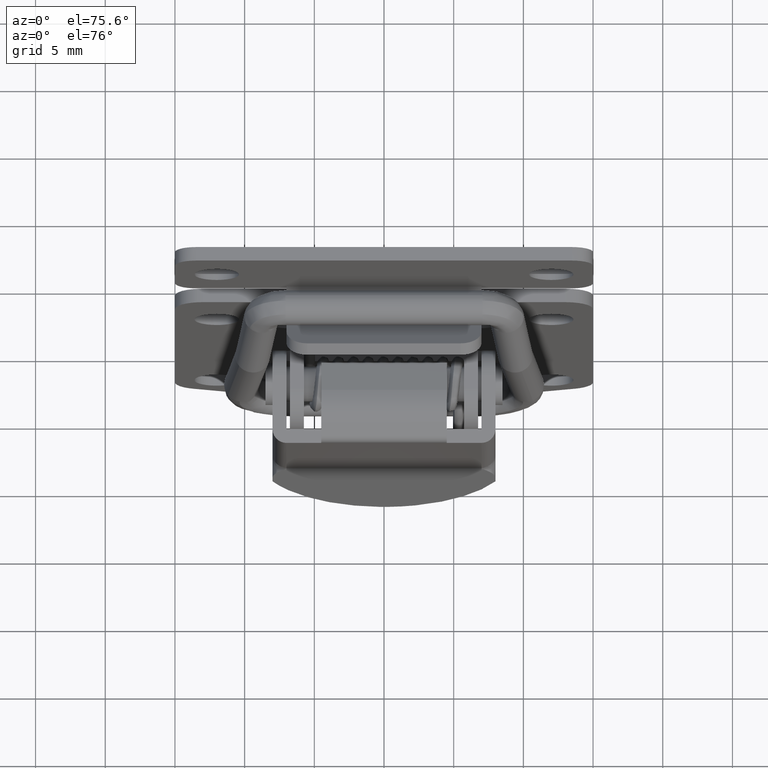
[diagram: clean part render]
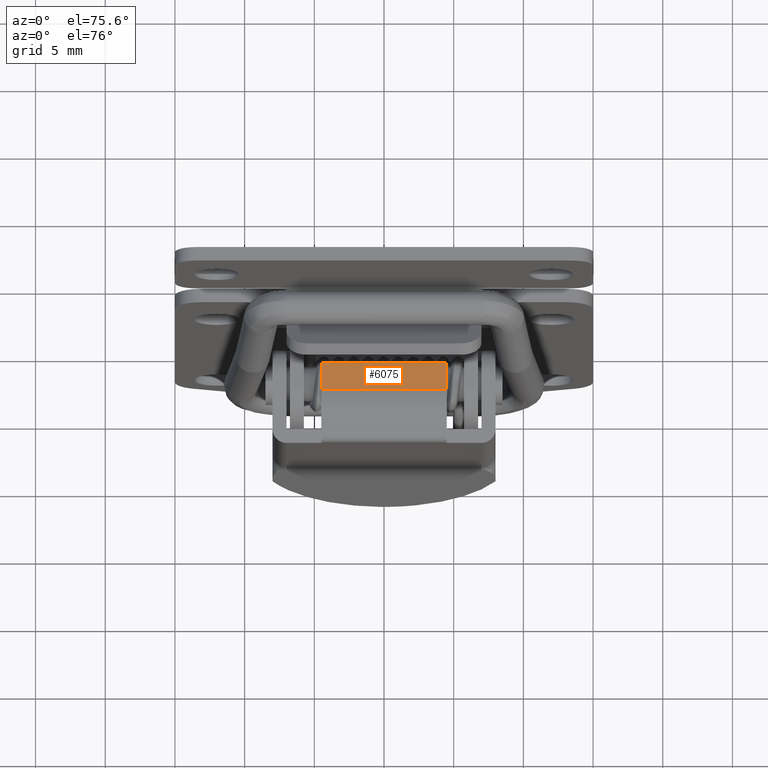
[diagram: same view with one face highlighted and labeled with its STEP entity id]
A machine part, auxiliary view. The second image highlights one B-rep face of the part: STEP entity #6075.
In plain terms, the highlighted face is a freeform B-spline surface patch.
Its self-contained STEP definition (entity closure, byte-faithful):
#6040=CARTESIAN_POINT('',(-1.096282308738753,-4.949549982556204,-10.737502398913170));
#6041=CARTESIAN_POINT('',(-3.510729440950477,-4.949549982556204,-9.883065269502716));
#6042=CARTESIAN_POINT('',(-1.096282308738753,4.949550223955125,-10.737502398913170));
#6043=CARTESIAN_POINT('',(-3.510729440950477,4.949550223955125,-9.883065269502716));
#6044=B_SPLINE_SURFACE_WITH_KNOTS('',1,1,((#6040,#6042),(#6041,#6043)),.UNSPECIFIED.,.F.,.F.,.U.,(2,2),(2,2),(0.0,2.561175074523527),(0.0,9.899100206511328),.UNSPECIFIED.);
#6045=CARTESIAN_POINT('',(-1.205930256885174,4.500000000000060,-10.698699611803001));
#6046=VERTEX_POINT('',#6045);
#6047=CARTESIAN_POINT('',(-3.401081885327760,4.500000000000060,-9.921867917704569));
#6048=VERTEX_POINT('',#6047);
#6049=CARTESIAN_POINT('',(-1.205930256885174,4.500000000000060,-10.698699611803001));
#6050=CARTESIAN_POINT('',(-3.401081885327760,4.500000000000060,-9.921867917704569));
#6051=QUASI_UNIFORM_CURVE('',1,(#6049,#6050),.UNSPECIFIED.,.F.,.U.);
#6052=EDGE_CURVE('',#6046,#6048,#6051,.T.);
#6053=ORIENTED_EDGE('',*,*,#6052,.T.);
#6054=CARTESIAN_POINT('',(-3.401081885327760,-4.499999999999949,-9.921867917704569));
#6055=VERTEX_POINT('',#6054);
#6056=CARTESIAN_POINT('',(-3.401081885327760,-4.499999999999949,-9.921867917704569));
#6057=CARTESIAN_POINT('',(-3.401081885327760,4.500000000000060,-9.921867917704569));
#6058=QUASI_UNIFORM_CURVE('',1,(#6056,#6057),.UNSPECIFIED.,.F.,.U.);
#6059=EDGE_CURVE('',#6055,#6048,#6058,.T.);
#6060=ORIENTED_EDGE('',*,*,#6059,.F.);
#6061=CARTESIAN_POINT('',(-1.205930256885174,-4.499999999999949,-10.698699611803001));
#6062=VERTEX_POINT('',#6061);
#6063=CARTESIAN_POINT('',(-1.205930256885174,-4.499999999999949,-10.698699611803001));
#6064=CARTESIAN_POINT('',(-3.401081885327760,-4.499999999999949,-9.921867917704569));
#6065=QUASI_UNIFORM_CURVE('',1,(#6063,#6064),.UNSPECIFIED.,.F.,.U.);
#6066=EDGE_CURVE('',#6062,#6055,#6065,.T.);
#6067=ORIENTED_EDGE('',*,*,#6066,.F.);
#6068=CARTESIAN_POINT('',(-1.205930256885174,-4.499999999999949,-10.698699611803001));
#6069=CARTESIAN_POINT('',(-1.205930256885174,4.500000000000060,-10.698699611803001));
#6070=QUASI_UNIFORM_CURVE('',1,(#6068,#6069),.UNSPECIFIED.,.F.,.U.);
#6071=EDGE_CURVE('',#6062,#6046,#6070,.T.);
#6072=ORIENTED_EDGE('',*,*,#6071,.T.);
#6073=EDGE_LOOP('',(#6053,#6060,#6067,#6072));
#6074=FACE_OUTER_BOUND('',#6073,.T.);
#6075=ADVANCED_FACE('',(#6074),#6044,.F.);